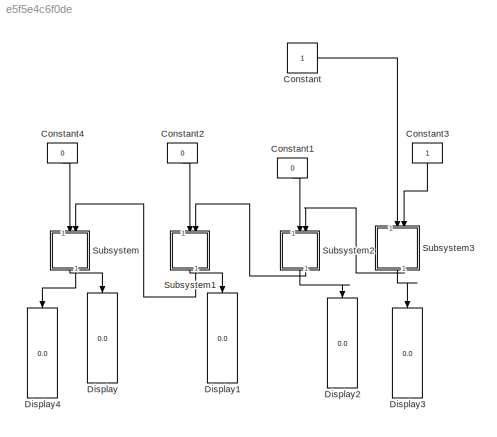
MODEL slx_e5f5e4c6f0de
KIND model
CONFIG AbsTol = auto
CONFIG EnableMultiTasking = off
CONFIG FixedStep = auto
CONFIG MaxStep = auto
CONFIG MinStep = auto
CONFIG RelTol = 1e-3
CONFIG SampleTimeConstraint = Unconstrained
CONFIG SolverName = VariableStepAuto
CONFIG StartTime = 0.0
CONFIG StopTime = 10.0
BLOCK [Constant] Constant
BLOCK [Constant] Constant1
  NameLocation = left
  Value = 0
BLOCK [Constant] Constant2
  NameLocation = left
  Value = 0
BLOCK [Constant] Constant3
  NameLocation = left
BLOCK [Constant] Constant4
  NameLocation = left
  Value = 0
BLOCK [Display] Display
  Decimation = 1
  NameLocation = left
BLOCK [Display] Display1
  Decimation = 1
  NameLocation = left
BLOCK [Display] Display2
  Decimation = 1
  NameLocation = left
BLOCK [Display] Display3
  Decimation = 1
  NameLocation = left
BLOCK [Display] Display4
  Decimation = 1
  NameLocation = left
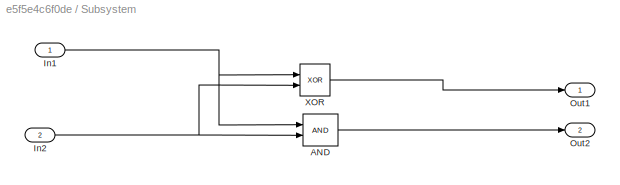
BLOCK [SubSystem] Subsystem
  NameLocation = left
BLOCK [Logic] Subsystem/AND
  AllPortsSameDT = off
  IconShape = distinctive
  OutDataTypeStr = boolean
BLOCK [Inport] Subsystem/In1
BLOCK [Inport] Subsystem/In2
  Port = 2
BLOCK [Outport] Subsystem/Out1
BLOCK [Outport] Subsystem/Out2
  Port = 2
BLOCK [Logic] Subsystem/XOR
  AllPortsSameDT = off
  IconShape = distinctive
  Operator = XOR
  OutDataTypeStr = boolean
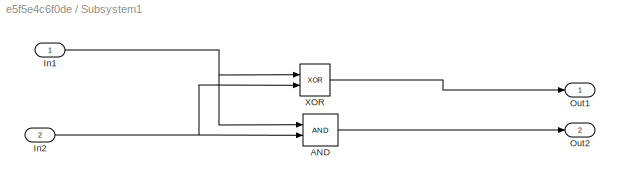
BLOCK [SubSystem] Subsystem1
  NameLocation = left
BLOCK [Logic] Subsystem1/AND
  AllPortsSameDT = off
  IconShape = distinctive
  OutDataTypeStr = boolean
BLOCK [Inport] Subsystem1/In1
BLOCK [Inport] Subsystem1/In2
  Port = 2
BLOCK [Outport] Subsystem1/Out1
BLOCK [Outport] Subsystem1/Out2
  Port = 2
BLOCK [Logic] Subsystem1/XOR
  AllPortsSameDT = off
  IconShape = distinctive
  Operator = XOR
  OutDataTypeStr = boolean
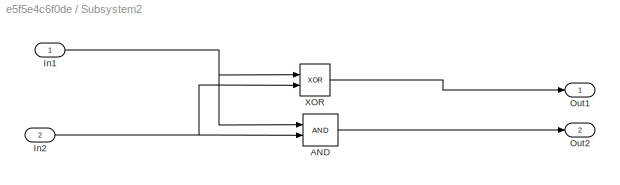
BLOCK [SubSystem] Subsystem2
  NameLocation = left
BLOCK [Logic] Subsystem2/AND
  AllPortsSameDT = off
  IconShape = distinctive
  OutDataTypeStr = boolean
BLOCK [Inport] Subsystem2/In1
BLOCK [Inport] Subsystem2/In2
  Port = 2
BLOCK [Outport] Subsystem2/Out1
BLOCK [Outport] Subsystem2/Out2
  Port = 2
BLOCK [Logic] Subsystem2/XOR
  AllPortsSameDT = off
  IconShape = distinctive
  Operator = XOR
  OutDataTypeStr = boolean
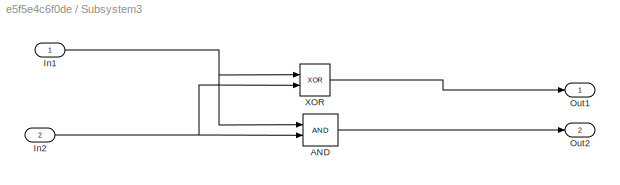
BLOCK [SubSystem] Subsystem3
  NameLocation = left
BLOCK [Logic] Subsystem3/AND
  AllPortsSameDT = off
  IconShape = distinctive
  OutDataTypeStr = boolean
BLOCK [Inport] Subsystem3/In1
BLOCK [Inport] Subsystem3/In2
  Port = 2
BLOCK [Outport] Subsystem3/Out1
BLOCK [Outport] Subsystem3/Out2
  Port = 2
BLOCK [Logic] Subsystem3/XOR
  AllPortsSameDT = off
  IconShape = distinctive
  Operator = XOR
  OutDataTypeStr = boolean
LINE Constant1:1 -> Subsystem2:1
LINE Constant2:1 -> Subsystem1:1
LINE Constant3:1 -> Subsystem3:2
LINE Constant4:1 -> Subsystem:1
LINE Constant:1 -> Subsystem3:1
LINE Subsystem/AND:1 -> Subsystem/Out2:1
NET Subsystem/In1:1 -> Subsystem/AND:1, Subsystem/XOR:1
NET Subsystem/In2:1 -> Subsystem/AND:2, Subsystem/XOR:2
LINE Subsystem/XOR:1 -> Subsystem/Out1:1
LINE Subsystem1/AND:1 -> Subsystem1/Out2:1
NET Subsystem1/In1:1 -> Subsystem1/AND:1, Subsystem1/XOR:1
NET Subsystem1/In2:1 -> Subsystem1/AND:2, Subsystem1/XOR:2
LINE Subsystem1/XOR:1 -> Subsystem1/Out1:1
LINE Subsystem1:1 -> Display1:1
LINE Subsystem1:2 -> Subsystem:2
LINE Subsystem2/AND:1 -> Subsystem2/Out2:1
NET Subsystem2/In1:1 -> Subsystem2/AND:1, Subsystem2/XOR:1
NET Subsystem2/In2:1 -> Subsystem2/AND:2, Subsystem2/XOR:2
LINE Subsystem2/XOR:1 -> Subsystem2/Out1:1
LINE Subsystem2:1 -> Display2:1
LINE Subsystem2:2 -> Subsystem1:2
LINE Subsystem3/AND:1 -> Subsystem3/Out2:1
NET Subsystem3/In1:1 -> Subsystem3/AND:1, Subsystem3/XOR:1
NET Subsystem3/In2:1 -> Subsystem3/AND:2, Subsystem3/XOR:2
LINE Subsystem3/XOR:1 -> Subsystem3/Out1:1
LINE Subsystem3:1 -> Display3:1
LINE Subsystem3:2 -> Subsystem2:2
LINE Subsystem:1 -> Display:1
LINE Subsystem:2 -> Display4:1
note: NET lines group one-source signal fan-out (src -> all destinations, sorted); 1:1 wires keep LINE
